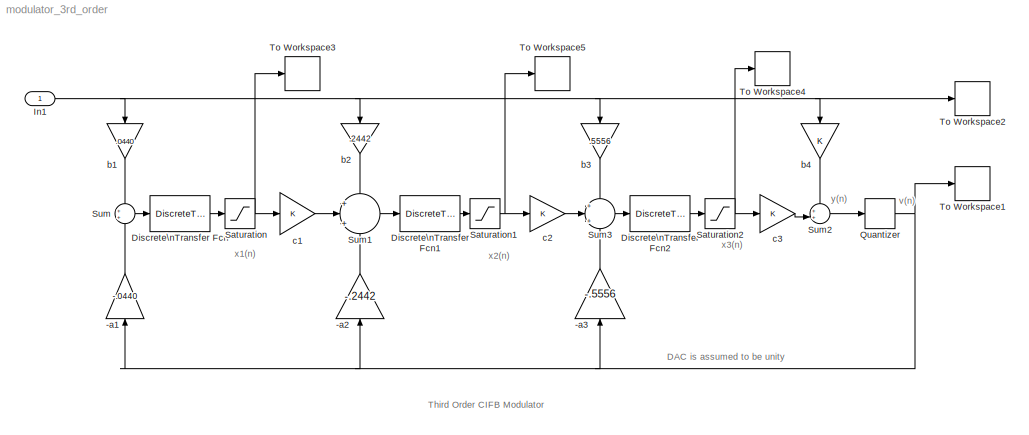
MODEL modulator_3rd_order
KIND model
BLOCK [Gain] -a1
  Gain = -.0440
  SID = 2
BLOCK [Gain] -a2
  Gain = -.2442
  SID = 3
BLOCK [Gain] -a3
  Gain = -.5556
  SID = 4
BLOCK [DiscreteTransferFcn] Discrete\nTransfer Fcn
  Denominator = [1 -1]
  Ports = [1, 1]
  SID = 5
  SampleTime = .05
BLOCK [DiscreteTransferFcn] Discrete\nTransfer Fcn1
  Denominator = [1 -1]
  Ports = [1, 1]
  SID = 6
  SampleTime = .05
BLOCK [DiscreteTransferFcn] Discrete\nTransfer Fcn2
  Denominator = [1 -1]
  Ports = [1, 1]
  SID = 7
  SampleTime = .05
BLOCK [Inport] In1
  IconDisplay = Port number
  SID = 1
BLOCK [Relay] Quantizer
  OffOutputValue = -1
  OffSwitchValue = -eps
  SID = 8
BLOCK [Saturate] Saturation
  InputPortMap = u0
  LinearizeAsGain = off
  LowerLimit = -1
  Ports = [1, 1]
  SID = 9
  UpperLimit = 1
BLOCK [Saturate] Saturation1
  InputPortMap = u0
  LowerLimit = -1
  Ports = [1, 1]
  SID = 10
  UpperLimit = 1
BLOCK [Saturate] Saturation2
  InputPortMap = u0
  LowerLimit = -1
  Ports = [1, 1]
  SID = 11
  UpperLimit = 1
BLOCK [Sum] Sum
  IconShape = round
  InputSameDT = off
  OutDataTypeStr = Inherit: Inherit via internal rule
  Ports = [2, 1]
  SID = 12
BLOCK [Sum] Sum1
  IconShape = round
  InputSameDT = off
  Inputs = +|+|+
  OutDataTypeStr = Inherit: Inherit via internal rule
  Ports = [3, 1]
  SID = 13
BLOCK [Sum] Sum2
  IconShape = round
  InputSameDT = off
  Inputs = ++|
  OutDataTypeStr = Inherit: Inherit via internal rule
  Ports = [2, 1]
  SID = 14
BLOCK [Sum] Sum3
  IconShape = round
  InputSameDT = off
  Inputs = +|+|+
  OutDataTypeStr = Inherit: Inherit via internal rule
  Ports = [3, 1]
  SID = 15
BLOCK [ToWorkspace] To Workspace1
  MaxDataPoints = inf
  Ports = [1]
  SID = 16
  SampleTime = -1
  SaveFormat = Array
  VariableName = v
BLOCK [ToWorkspace] To Workspace2
  MaxDataPoints = inf
  Ports = [1]
  SID = 17
  SampleTime = -1
  SaveFormat = Array
  VariableName = u
BLOCK [ToWorkspace] To Workspace3
  MaxDataPoints = inf
  Ports = [1]
  SID = 18
  SampleTime = -1
  SaveFormat = Array
  VariableName = x1
BLOCK [ToWorkspace] To Workspace4
  MaxDataPoints = inf
  Ports = [1]
  SID = 19
  SampleTime = -1
  SaveFormat = Array
  VariableName = x3
BLOCK [ToWorkspace] To Workspace5
  MaxDataPoints = inf
  Ports = [1]
  SID = 20
  SampleTime = -1
  SaveFormat = Array
  VariableName = x2
BLOCK [Gain] b1
  Gain = .0440
  SID = 21
BLOCK [Gain] b2
  Gain = .2442
  SID = 22
BLOCK [Gain] b3
  Gain = .5556
  SID = 23
BLOCK [Gain] b4
  SID = 24
BLOCK [Gain] c1
  SID = 25
BLOCK [Gain] c2
  SID = 26
BLOCK [Gain] c3
  SID = 27
ANNOTATION (root): DAC is assumed to be unity
ANNOTATION (root): Third Order CIFB Modulator
ANNOTATION (root): v(n)
ANNOTATION (root): x1(n)
ANNOTATION (root): x2(n)
ANNOTATION (root): x3(n)
ANNOTATION (root): y(n)
LINE -a1:1 -> Sum:2
LINE -a2:1 -> Sum1:3
LINE -a3:1 -> Sum3:3
LINE Discrete\nTransfer Fcn1:1 -> Saturation1:1
LINE Discrete\nTransfer Fcn2:1 -> Saturation2:1
LINE Discrete\nTransfer Fcn:1 -> Saturation:1
NET In1:1 -> To Workspace2:1, b1:1, b2:1, b3:1, b4:1
NET Quantizer:1 -> -a1:1, -a2:1, -a3:1, To Workspace1:1
NET Saturation1:1 -> To Workspace5:1, c2:1
NET Saturation2:1 -> To Workspace4:1, c3:1
NET Saturation:1 -> To Workspace3:1, c1:1
LINE Sum1:1 -> Discrete\nTransfer Fcn1:1
LINE Sum2:1 -> Quantizer:1
LINE Sum3:1 -> Discrete\nTransfer Fcn2:1
LINE Sum:1 -> Discrete\nTransfer Fcn:1
LINE b1:1 -> Sum:1
LINE b2:1 -> Sum1:1
LINE b3:1 -> Sum3:1
LINE b4:1 -> Sum2:1
LINE c1:1 -> Sum1:2
LINE c2:1 -> Sum3:2
LINE c3:1 -> Sum2:2
note: NET lines group one-source signal fan-out (src -> all destinations, sorted); 1:1 wires keep LINE
